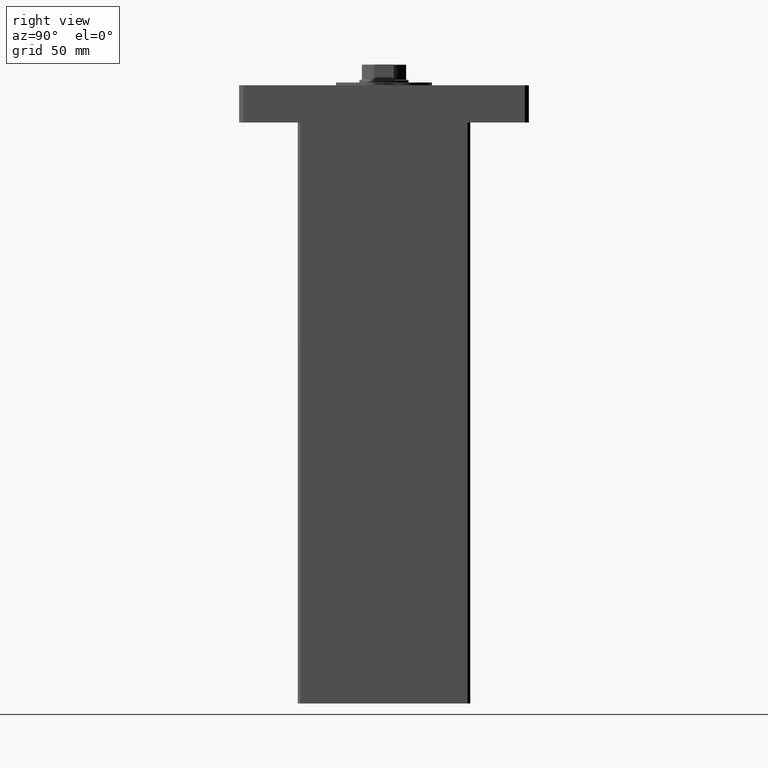
[diagram: clean part render]
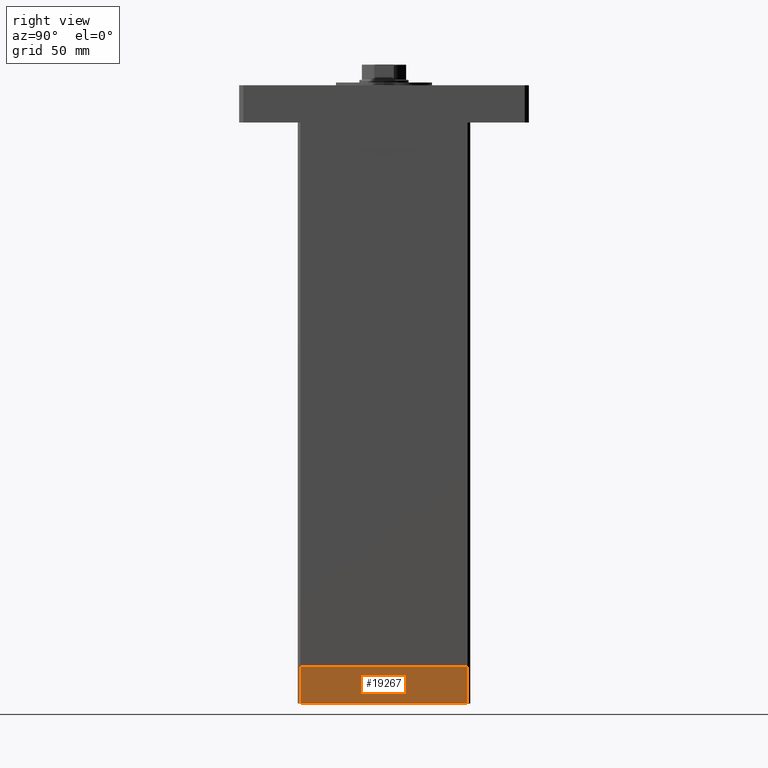
[diagram: same view with one face highlighted and labeled with its STEP entity id]
A machine part, right view. The second image highlights one B-rep face of the part: STEP entity #19267.
In plain terms, the highlighted planar face has unit normal (1, 0, 0).
Its self-contained STEP definition (entity closure, byte-faithful):
#560 = LINE ( 'NONE', #41719, #48111 ) ;
#1494 = EDGE_CURVE ( 'NONE', #49849, #7521, #24185, .T. ) ;
#2319 = EDGE_CURVE ( 'NONE', #43052, #49849, #7922, .T. ) ;
#4672 = ORIENTED_EDGE ( 'NONE', *, *, #1494, .F. ) ;
#6420 = CARTESIAN_POINT ( 'NONE',  ( -75.00000000000001421, 60.49999999999997158, -27.00000000000000000 ) ) ;
#7027 = ORIENTED_EDGE ( 'NONE', *, *, #36244, .T. ) ;
#7521 = VERTEX_POINT ( 'NONE', #37910 ) ;
#7578 = VECTOR ( 'NONE', #31449, 1000.000000000000000 ) ;
#7922 = LINE ( 'NONE', #49116, #28908 ) ;
#9010 = FACE_OUTER_BOUND ( 'NONE', #47816, .T. ) ;
#12085 = ORIENTED_EDGE ( 'NONE', *, *, #2319, .F. ) ;
#15035 = CARTESIAN_POINT ( 'NONE',  ( -75.00000000000001421, -60.50000000000001421, -27.00000000000000000 ) ) ;
#16276 = CARTESIAN_POINT ( 'NONE',  ( -75.00000000000001421, 60.49999999999997158, -27.00000000000000000 ) ) ;
#19267 = ADVANCED_FACE ( 'NONE', ( #9010 ), #49937, .T. ) ;
#24185 = LINE ( 'NONE', #40083, #40911 ) ;
#24227 = ORIENTED_EDGE ( 'NONE', *, *, #27459, .T. ) ;
#27124 = VERTEX_POINT ( 'NONE', #27736 ) ;
#27418 = DIRECTION ( 'NONE',  ( 0.000000000000000000, -1.000000000000000000, 0.000000000000000000 ) ) ;
#27459 = EDGE_CURVE ( 'NONE', #27124, #7521, #51954, .T. ) ;
#27736 = CARTESIAN_POINT ( 'NONE',  ( -75.00000000000001421, -60.50000000000001421, -27.00000000000000000 ) ) ;
#27882 = CARTESIAN_POINT ( 'NONE',  ( -75.00000000000001421, 60.49999999999997158, 0.000000000000000000 ) ) ;
#28908 = VECTOR ( 'NONE', #32947, 1000.000000000000000 ) ;
#28918 = DIRECTION ( 'NONE',  ( -1.000000000000000000, 0.000000000000000000, 0.000000000000000000 ) ) ;
#31449 = DIRECTION ( 'NONE',  ( 0.000000000000000000, 0.000000000000000000, 1.000000000000000000 ) ) ;
#32947 = DIRECTION ( 'NONE',  ( 0.000000000000000000, 0.000000000000000000, 1.000000000000000000 ) ) ;
#36244 = EDGE_CURVE ( 'NONE', #43052, #27124, #560, .T. ) ;
#36994 = DIRECTION ( 'NONE',  ( 0.000000000000000000, 0.000000000000000000, 1.000000000000000000 ) ) ;
#37661 = DIRECTION ( 'NONE',  ( 0.000000000000000000, -1.000000000000000000, 0.000000000000000000 ) ) ;
#37910 = CARTESIAN_POINT ( 'NONE',  ( -75.00000000000001421, -60.50000000000001421, 0.000000000000000000 ) ) ;
#40083 = CARTESIAN_POINT ( 'NONE',  ( -75.00000000000001421, 60.49999999999997158, 0.000000000000000000 ) ) ;
#40911 = VECTOR ( 'NONE', #27418, 1000.000000000000000 ) ;
#41719 = CARTESIAN_POINT ( 'NONE',  ( -75.00000000000001421, 60.49999999999997158, -27.00000000000000000 ) ) ;
#43036 = AXIS2_PLACEMENT_3D ( 'NONE', #16276, #28918, #36994 ) ;
#43052 = VERTEX_POINT ( 'NONE', #6420 ) ;
#47816 = EDGE_LOOP ( 'NONE', ( #4672, #12085, #7027, #24227 ) ) ;
#48111 = VECTOR ( 'NONE', #37661, 1000.000000000000000 ) ;
#49116 = CARTESIAN_POINT ( 'NONE',  ( -75.00000000000001421, 60.49999999999997158, -27.00000000000000000 ) ) ;
#49849 = VERTEX_POINT ( 'NONE', #27882 ) ;
#49937 = PLANE ( 'NONE',  #43036 ) ;
#51954 = LINE ( 'NONE', #15035, #7578 ) ;